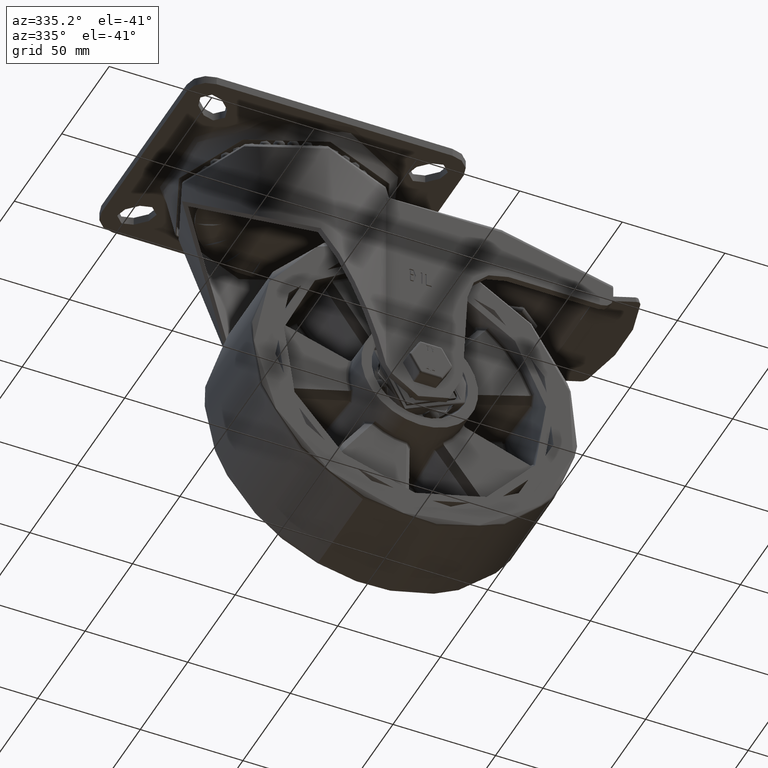
[diagram: clean part render]
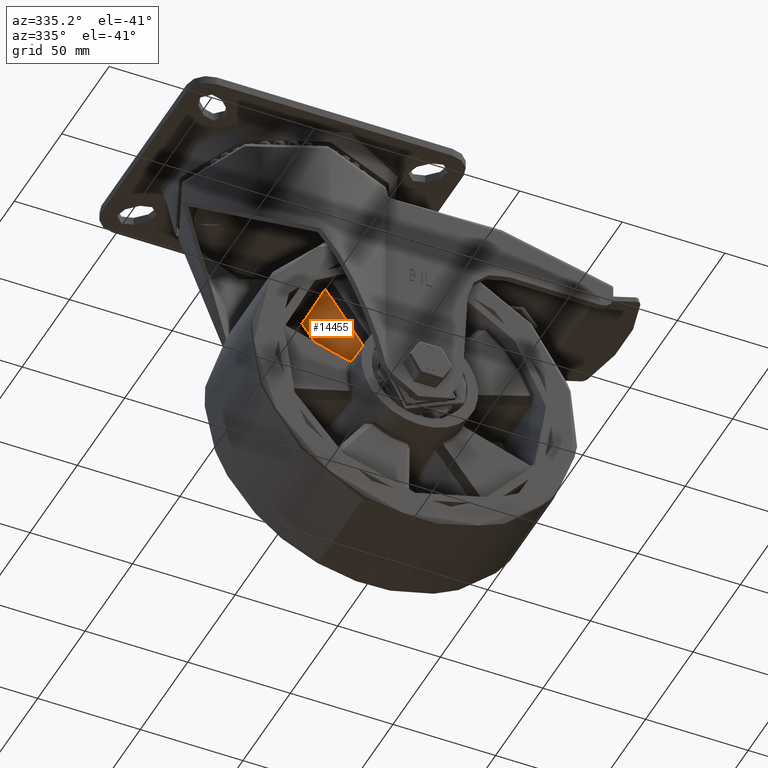
[diagram: same view with one face highlighted and labeled with its STEP entity id]
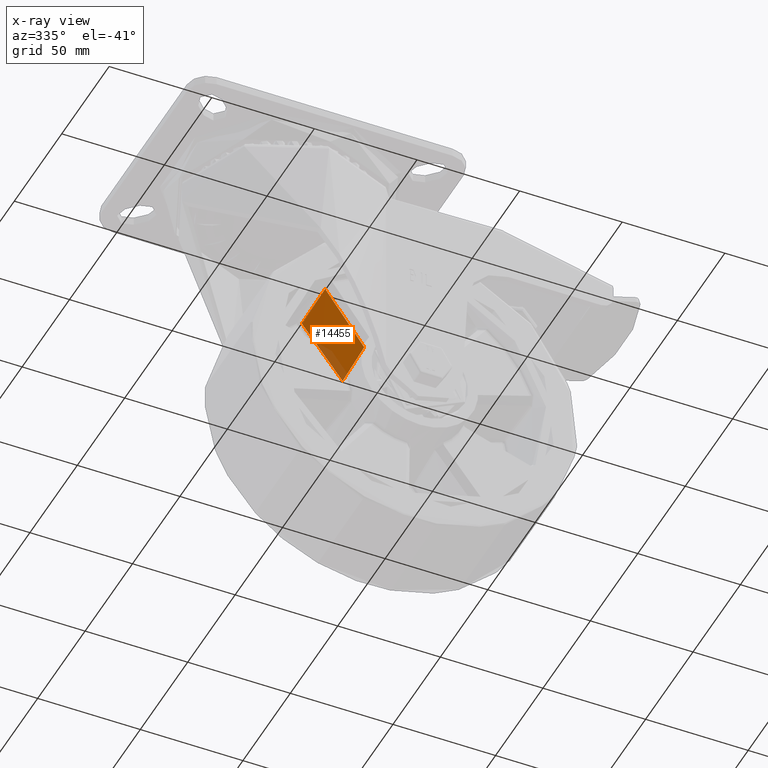
[diagram: x-ray of the same camera — body ghosted, the highlighted face saturated]
A machine part, auxiliary view. The second image highlights one B-rep face of the part: STEP entity #14455.
The next image is the same camera in x-ray: the body ghosted, the highlighted face saturated — about 12% of this face is hidden behind the body in this view.
In plain terms, the highlighted face is a freeform B-spline surface patch.
Its self-contained STEP definition (entity closure, byte-faithful):
#761=B_SPLINE_SURFACE_WITH_KNOTS('',3,3,((#61029,#61030,#61031,#61032),
(#61033,#61034,#61035,#61036),(#61037,#61038,#61039,#61040),(#61041,#61042,
#61043,#61044)),.UNSPECIFIED.,.F.,.F.,.F.,(4,4),(4,4),(0.0417081129651373,
0.966776755904689),(0.100680831982432,0.949651292990545),.UNSPECIFIED.);
#1547=B_SPLINE_CURVE_WITH_KNOTS('',3,(#48903,#48904,#48905,#48906,#48907,
#48908,#48909,#48910,#48911,#48912,#48913,#48914,#48915),.UNSPECIFIED.,
 .F.,.F.,(4,1,2,1,1,1,2,1,4),(0.,0.0055882766908025,0.0110072116637019,
0.014394046021764,0.0165108174955528,0.0186275889693417,0.0220144233274038,
0.0274333583003032,0.0330216349911057),.UNSPECIFIED.);
#1551=B_SPLINE_CURVE_WITH_KNOTS('',3,(#49397,#49398,#49399,#49400,#49401,
#49402,#49403,#49404,#49405,#49406,#49407,#49408,#49409,#49410,#49411,#49412),
 .UNSPECIFIED.,.F.,.F.,(4,2,2,2,2,2,2,4),(2.16712447232595E-16,0.00553100730501529,
0.0108944083280602,0.0142465339674633,0.0163416124920902,0.0184366910167171,
0.0217888166561202,0.0262250287180331),.UNSPECIFIED.);
#1588=B_SPLINE_CURVE_WITH_KNOTS('',3,(#59554,#59555,#59556,#59557,#59558,
#59559,#59560,#59561,#59562,#59563,#59564,#59565,#59566,#59567,#59568,#59569),
 .UNSPECIFIED.,.F.,.F.,(4,2,2,2,2,2,2,4),(0.00156457421201686,0.0063308412239254,
0.00964975235195937,0.0117240718069806,0.0137983912620018,0.0171173023900358,
0.0224275601948902,0.0279037635561462),.UNSPECIFIED.);
#1593=B_SPLINE_CURVE_WITH_KNOTS('',3,(#61016,#61017,#61018,#61019,#61020,
#61021,#61022,#61023,#61024,#61025,#61026,#61027,#61028),.UNSPECIFIED.,
 .F.,.F.,(4,2,2,1,2,2,4),(-0.0345318075250441,-0.0276027694980824,-0.020545598523409,
-0.0161348666642382,-0.0117241348050673,-0.00466696383039392,-0.00134684437518298),
 .UNSPECIFIED.);
#2404=FACE_OUTER_BOUND('',#3335,.T.);
#3335=EDGE_LOOP('',(#12134,#12135,#12136,#12137));
#6635=VERTEX_POINT('',#26629);
#6637=VERTEX_POINT('',#26635);
#6860=VERTEX_POINT('',#49395);
#6886=VERTEX_POINT('',#59553);
#8640=EDGE_CURVE('',#6635,#6637,#1547,.T.);
#8650=EDGE_CURVE('',#6860,#6635,#1551,.T.);
#8726=EDGE_CURVE('',#6637,#6886,#1588,.T.);
#8736=EDGE_CURVE('',#6886,#6860,#1593,.T.);
#12134=ORIENTED_EDGE('',*,*,#8640,.F.);
#12135=ORIENTED_EDGE('',*,*,#8650,.F.);
#12136=ORIENTED_EDGE('',*,*,#8736,.F.);
#12137=ORIENTED_EDGE('',*,*,#8726,.F.);
#14455=ADVANCED_FACE('',(#2404),#761,.T.);
#26629=CARTESIAN_POINT('',(-18.0253520259604,12.3808018894575,23.9292967029837));
#26635=CARTESIAN_POINT('',(-37.8221073354901,12.4394471046026,50.3590276013077));
#48903=CARTESIAN_POINT('Ctrl Pts',(-18.0253520245019,12.3808018894686,23.9292967006449));
#48904=CARTESIAN_POINT('Ctrl Pts',(-19.1419367660203,12.3840971772494,25.4203208463463));
#48905=CARTESIAN_POINT('Ctrl Pts',(-21.3413218860342,12.3905930229954,28.3571480209694));
#48906=CARTESIAN_POINT('Ctrl Pts',(-23.5408087718646,12.3970981478658,31.2938990312913));
#48907=CARTESIAN_POINT('Ctrl Pts',(-25.3004384483442,12.4023055867321,33.6432697725523));
#48908=CARTESIAN_POINT('Ctrl Pts',(-26.4002226865452,12.4055615402698,35.1116147410331));
#48909=CARTESIAN_POINT('Ctrl Pts',(-27.9230362105194,12.4100725439185,37.1446813127406));
#48910=CARTESIAN_POINT('Ctrl Pts',(-29.4458769454881,12.4145855867898,39.1777275131119));
#48911=CARTESIAN_POINT('Ctrl Pts',(-30.5457319317248,12.4178468421848,40.6460195165288));
#48912=CARTESIAN_POINT('Ctrl Pts',(-32.3055251102373,12.4230665331945,42.9952678530308));
#48913=CARTESIAN_POINT('Ctrl Pts',(-34.505316984915,12.4295945117975,45.9317905353777));
#48914=CARTESIAN_POINT('Ctrl Pts',(-36.7052113979684,12.4361285097332,48.8682364308465));
#48915=CARTESIAN_POINT('Ctrl Pts',(-37.8221073355908,12.4394471039419,50.3590276013913));
#49395=CARTESIAN_POINT('',(-19.5623081424112,-13.760523899829,22.4904158122609));
#49397=CARTESIAN_POINT('Ctrl Pts',(-19.56230814276,-13.7605238996726,22.4904158120166));
#49398=CARTESIAN_POINT('Ctrl Pts',(-19.4568078815115,-11.9228353908302,
22.5962758709354));
#49399=CARTESIAN_POINT('Ctrl Pts',(-19.3507839849525,-10.0851206536008,
22.7011045065247));
#49400=CARTESIAN_POINT('Ctrl Pts',(-19.1409012558234,-6.46533571576463,
22.9056054911846));
#49401=CARTESIAN_POINT('Ctrl Pts',(-19.0370741695018,-4.68326684056451,
23.0053378127688));
#49402=CARTESIAN_POINT('Ctrl Pts',(-18.8675285611265,-1.78737678629567,
23.1659031172941));
#49403=CARTESIAN_POINT('Ctrl Pts',(-18.8021199942057,-0.673566155834133,
23.2272984587126));
#49404=CARTESIAN_POINT('Ctrl Pts',(-18.6955045156122,1.1363856946443,23.3264882438473));
#49405=CARTESIAN_POINT('Ctrl Pts',(-18.6544200651751,1.83252324141835,23.3644992946619));
#49406=CARTESIAN_POINT('Ctrl Pts',(-18.5720929818742,3.22480304138827,23.4402460755497));
#49407=CARTESIAN_POINT('Ctrl Pts',(-18.5308503497543,3.92094528169165,23.4779818048261));
#49408=CARTESIAN_POINT('Ctrl Pts',(-18.4234123241943,5.73092066763145,23.5757397708655));
#49409=CARTESIAN_POINT('Ctrl Pts',(-18.357092628456,6.84475714976385,23.635549061694));
#49410=CARTESIAN_POINT('Ctrl Pts',(-18.2025254061291,9.43265863373459,23.7737086781247));
#49411=CARTESIAN_POINT('Ctrl Pts',(-18.1141227220635,10.9067271324439,23.8517998646169));
#49412=CARTESIAN_POINT('Ctrl Pts',(-18.0253520290614,12.3808018894339,23.9292967083059));
#59553=CARTESIAN_POINT('',(-38.6265593512363,-13.8783801649583,49.6530757682677));
#59554=CARTESIAN_POINT('Ctrl Pts',(-37.8221073353724,12.4394471046026,50.3590276011699));
#59555=CARTESIAN_POINT('Ctrl Pts',(-37.8707768232165,10.8519709879527,50.3170228886003));
#59556=CARTESIAN_POINT('Ctrl Pts',(-37.9194177093326,9.2644963379555,50.2749158781427));
#59557=CARTESIAN_POINT('Ctrl Pts',(-38.0018824319613,6.57161263674237,50.2033127981105));
#59558=CARTESIAN_POINT('Ctrl Pts',(-38.0357203702045,5.46620278366598,50.1738700365108));
#59559=CARTESIAN_POINT('Ctrl Pts',(-38.0906861159237,3.66991304845957,50.125943342622));
#59560=CARTESIAN_POINT('Ctrl Pts',(-38.1118217623239,2.9790326878146,50.1074902375866));
#59561=CARTESIAN_POINT('Ctrl Pts',(-38.1540832046012,1.59727259490459,50.0705443034169));
#59562=CARTESIAN_POINT('Ctrl Pts',(-38.1752090004853,0.906392862400614,
50.052051474277));
#59563=CARTESIAN_POINT('Ctrl Pts',(-38.2301235229851,-0.889893619231835,
50.0039182125444));
#59564=CARTESIAN_POINT('Ctrl Pts',(-38.2639047215331,-1.99529987128463,
49.9742466367443));
#59565=CARTESIAN_POINT('Ctrl Pts',(-38.3517047718084,-4.86935393050699,
49.8969665672249));
#59566=CARTESIAN_POINT('Ctrl Pts',(-38.4057049846843,-6.63800042003341,
49.8492776919624));
#59567=CARTESIAN_POINT('Ctrl Pts',(-38.5153341348132,-10.2305589502703,
49.7521381608845));
#59568=CARTESIAN_POINT('Ctrl Pts',(-38.5709612351528,-12.0544708456268,
49.702679020901));
#59569=CARTESIAN_POINT('Ctrl Pts',(-38.626559351723,-13.8783801649454,49.6530757679251));
#61016=CARTESIAN_POINT('Ctrl Pts',(-38.6265593497845,-13.8783801651799,
49.6530757692843));
#61017=CARTESIAN_POINT('Ctrl Pts',(-37.2998820595856,-13.8701513007442,
47.7624108149801));
#61018=CARTESIAN_POINT('Ctrl Pts',(-35.9731632361634,-13.8619265564085,
45.8717750105217));
#61019=CARTESIAN_POINT('Ctrl Pts',(-33.2951080520033,-13.8453349678507,
42.0556001443941));
#61020=CARTESIAN_POINT('Ctrl Pts',(-31.9437701476259,-13.8369683078833,
40.1300621664217));
#61021=CARTESIAN_POINT('Ctrl Pts',(-29.7477764399993,-13.8233822455761,
37.0011118233179));
#61022=CARTESIAN_POINT('Ctrl Pts',(-28.0585170441283,-13.8129361205713,
34.5942504392113));
#61023=CARTESIAN_POINT('Ctrl Pts',(-26.36919086274,-13.802500225576,32.1874359447202));
#61024=CARTESIAN_POINT('Ctrl Pts',(-24.1730235211849,-13.7889407585962,
29.0586075093511));
#61025=CARTESIAN_POINT('Ctrl Pts',(-22.8214932858382,-13.7806035574263,
27.1332045664033));
#61026=CARTESIAN_POINT('Ctrl Pts',(-20.8340591657191,-13.7683557114509,
24.3020196364242));
#61027=CARTESIAN_POINT('Ctrl Pts',(-20.1981883418281,-13.7644388828646,
23.3962144321232));
#61028=CARTESIAN_POINT('Ctrl Pts',(-19.5623081413649,-13.7605239002983,
22.490415812994));
#61029=CARTESIAN_POINT('Ctrl Pts',(-37.8221073355685,12.4394471046027,50.359027601406));
#61030=CARTESIAN_POINT('Ctrl Pts',(-38.1182653129604,3.66676164889867,50.1632038223736));
#61031=CARTESIAN_POINT('Ctrl Pts',(-38.4142315256011,-5.10593370230456,
49.9675327543337));
#61032=CARTESIAN_POINT('Ctrl Pts',(-38.7099924925981,-13.8786389464191,
49.7719957334648));
#61033=CARTESIAN_POINT('Ctrl Pts',(-31.159510025903,12.4592394365543,41.4687077443797));
#61034=CARTESIAN_POINT('Ctrl Pts',(-31.5495499206022,3.68655701336932,41.2046644430359));
#61035=CARTESIAN_POINT('Ctrl Pts',(-31.9393983556923,-5.08613852921841,
40.9407736058592));
#61036=CARTESIAN_POINT('Ctrl Pts',(-32.329041875301,-13.8588471877886,40.6770166038019));
#61037=CARTESIAN_POINT('Ctrl Pts',(-24.4965996344585,12.4789841212447,32.5786224823977));
#61038=CARTESIAN_POINT('Ctrl Pts',(-24.9805188997399,3.70630470857205,32.2463564597264));
#61039=CARTESIAN_POINT('Ctrl Pts',(-25.464247162179,-5.06639102401359,31.9142425375169));
#61040=CARTESIAN_POINT('Ctrl Pts',(-25.9477709978943,-13.8391030722626,
31.5822621311849));
#61041=CARTESIAN_POINT('Ctrl Pts',(-17.8333828309465,12.4986355838082,23.6887668177842));
#61042=CARTESIAN_POINT('Ctrl Pts',(-18.411178976378,3.72595913897517,23.2882749413998));
#61043=CARTESIAN_POINT('Ctrl Pts',(-18.9887847219993,-5.04673678091755,
22.8879346890511));
#61044=CARTESIAN_POINT('Ctrl Pts',(-19.5661866826192,-13.8194521708009,
22.487727529927));